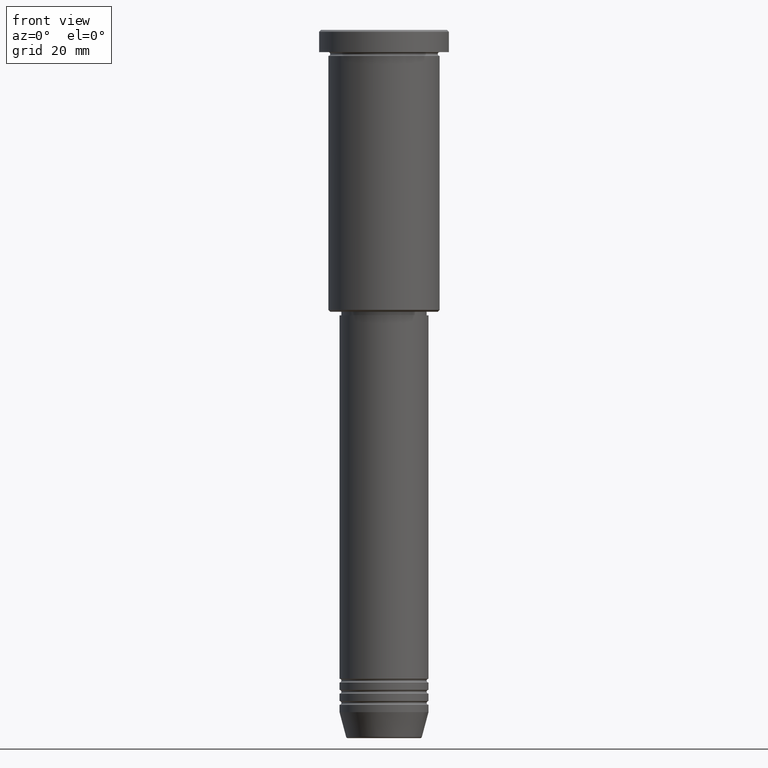
[diagram: clean part render]
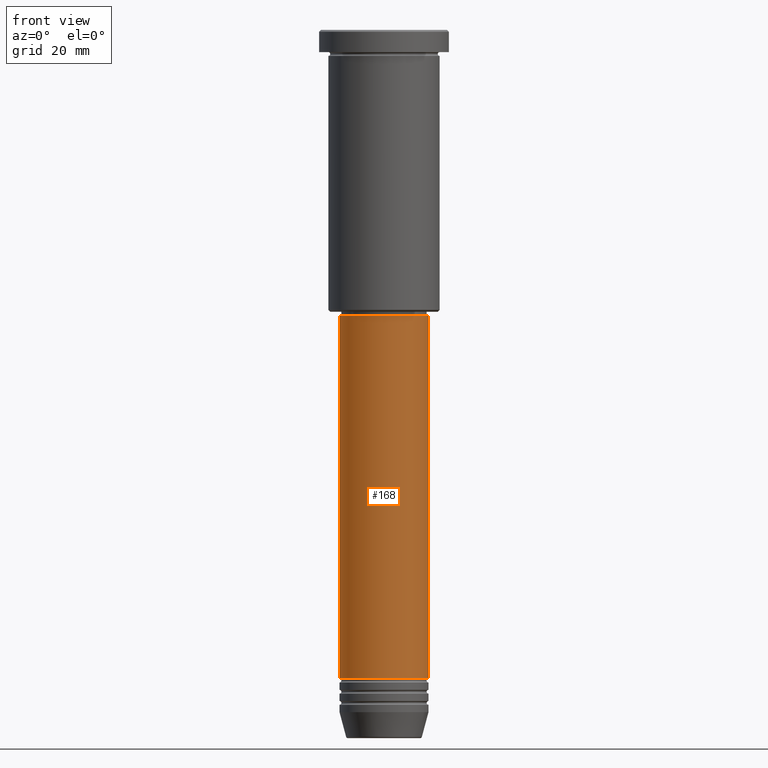
[diagram: same view with one face highlighted and labeled with its STEP entity id]
A machine part, front view. The second image highlights one B-rep face of the part: STEP entity #168.
In plain terms, the highlighted cylindrical surface (partial cylindrical patch) has radius 12 mm, axis along (-0, -0, 1).
Its self-contained STEP definition (entity closure, byte-faithful):
#25 = DIRECTION ( 'NONE',  ( 1.000000000000000000, 0.000000000000000000, 0.000000000000000000 ) ) ;
#29 = CARTESIAN_POINT ( 'NONE',  ( 0.000000000000000000, 0.000000000000000000, -77.00000000000001421 ) ) ;
#57 = CARTESIAN_POINT ( 'NONE',  ( -12.00000000000000000, 1.469576158976823947E-15, -175.0000000000000000 ) ) ;
#106 = DIRECTION ( 'NONE',  ( 1.000000000000000000, 0.000000000000000000, 0.000000000000000000 ) ) ;
#122 = AXIS2_PLACEMENT_3D ( 'NONE', #29, #412, #954 ) ;
#135 = CIRCLE ( 'NONE', #122, 12.00000000000000000 ) ;
#168 = ADVANCED_FACE ( 'NONE', ( #1011 ), #1158, .T. ) ;
#174 = ORIENTED_EDGE ( 'NONE', *, *, #344, .T. ) ;
#185 = CARTESIAN_POINT ( 'NONE',  ( -12.00000000000000000, 1.469576158976823947E-15, -77.00000000000001421 ) ) ;
#206 = VERTEX_POINT ( 'NONE', #185 ) ;
#231 = EDGE_CURVE ( 'NONE', #672, #206, #960, .T. ) ;
#294 = AXIS2_PLACEMENT_3D ( 'NONE', #761, #1111, #106 ) ;
#308 = CARTESIAN_POINT ( 'NONE',  ( 0.000000000000000000, 0.000000000000000000, -175.0000000000000000 ) ) ;
#319 = CARTESIAN_POINT ( 'NONE',  ( 12.00000000000000000, 0.000000000000000000, -77.00000000000001421 ) ) ;
#322 = ORIENTED_EDGE ( 'NONE', *, *, #231, .F. ) ;
#341 = EDGE_LOOP ( 'NONE', ( #322, #678, #174, #714 ) ) ;
#344 = EDGE_CURVE ( 'NONE', #546, #639, #381, .T. ) ;
#381 = LINE ( 'NONE', #926, #551 ) ;
#412 = DIRECTION ( 'NONE',  ( -0.000000000000000000, -0.000000000000000000, 1.000000000000000000 ) ) ;
#415 = CARTESIAN_POINT ( 'NONE',  ( -12.00000000000000000, 1.469576158976823947E-15, 0.000000000000000000 ) ) ;
#546 = VERTEX_POINT ( 'NONE', #1025 ) ;
#547 = DIRECTION ( 'NONE',  ( -0.000000000000000000, -0.000000000000000000, 1.000000000000000000 ) ) ;
#551 = VECTOR ( 'NONE', #547, 1000.000000000000000 ) ;
#596 = DIRECTION ( 'NONE',  ( -0.000000000000000000, -0.000000000000000000, 1.000000000000000000 ) ) ;
#606 = VECTOR ( 'NONE', #772, 1000.000000000000000 ) ;
#639 = VERTEX_POINT ( 'NONE', #319 ) ;
#649 = AXIS2_PLACEMENT_3D ( 'NONE', #308, #596, #25 ) ;
#672 = VERTEX_POINT ( 'NONE', #57 ) ;
#678 = ORIENTED_EDGE ( 'NONE', *, *, #928, .T. ) ;
#714 = ORIENTED_EDGE ( 'NONE', *, *, #974, .F. ) ;
#761 = CARTESIAN_POINT ( 'NONE',  ( 0.000000000000000000, 0.000000000000000000, 0.000000000000000000 ) ) ;
#772 = DIRECTION ( 'NONE',  ( -0.000000000000000000, -0.000000000000000000, 1.000000000000000000 ) ) ;
#926 = CARTESIAN_POINT ( 'NONE',  ( 12.00000000000000000, 0.000000000000000000, 0.000000000000000000 ) ) ;
#928 = EDGE_CURVE ( 'NONE', #672, #546, #935, .T. ) ;
#935 = CIRCLE ( 'NONE', #649, 12.00000000000000000 ) ;
#954 = DIRECTION ( 'NONE',  ( 1.000000000000000000, 0.000000000000000000, 0.000000000000000000 ) ) ;
#960 = LINE ( 'NONE', #415, #606 ) ;
#974 = EDGE_CURVE ( 'NONE', #206, #639, #135, .T. ) ;
#1011 = FACE_OUTER_BOUND ( 'NONE', #341, .T. ) ;
#1025 = CARTESIAN_POINT ( 'NONE',  ( 12.00000000000000000, 0.000000000000000000, -175.0000000000000000 ) ) ;
#1111 = DIRECTION ( 'NONE',  ( -0.000000000000000000, -0.000000000000000000, 1.000000000000000000 ) ) ;
#1158 = CYLINDRICAL_SURFACE ( 'NONE', #294, 12.00000000000000000 ) ;